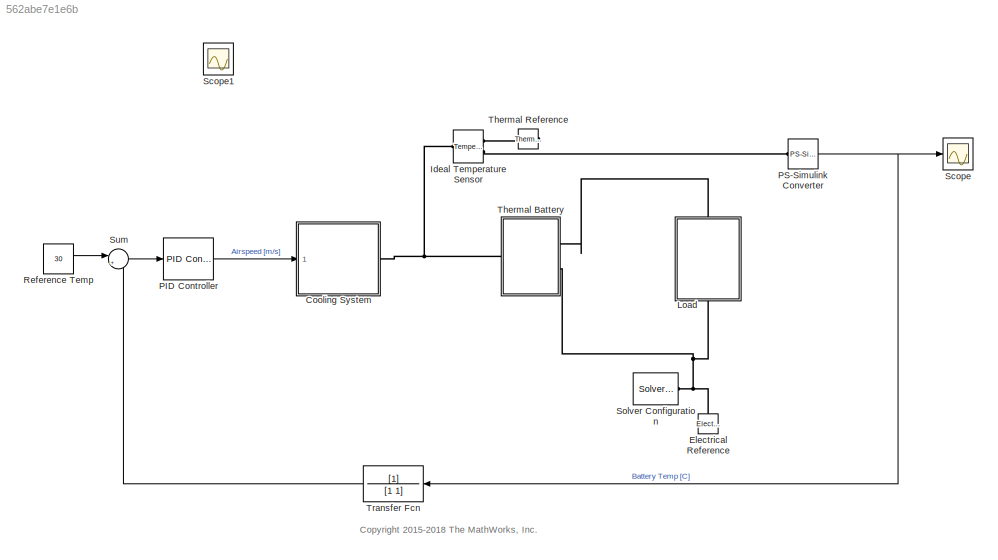
MODEL slx_562abe7e1e6b
KIND model
CONFIG AbsTol = 1e-3
CONFIG EnableMultiTasking = on
CONFIG FixedStep = auto
CONFIG MaxStep = auto
CONFIG MinStep = auto
CONFIG PreLoadFcn = % Cooler lookup table data\nload coolerData;
CONFIG RelTol = 1e-3
CONFIG SampleTimeConstraint = Unconstrained
CONFIG Solver = ode23t
CONFIG SolverName = ode23t
CONFIG StartTime = 0.0
CONFIG StopTime = 1000
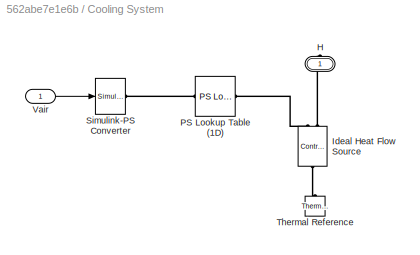
BLOCK [SubSystem] Cooling System
  Ports = [1, 0, 0, 0, 0, 0, 1]
  RequestExecContextInheritance = off
  Variant = off
BLOCK [PMIOPort] Cooling System/H
  Port = 1
  Side = Right
BLOCK [Reference] Cooling System/Ideal Heat Flow Source  REF=fl_lib/Thermal/Thermal Sources/Controlled Heat Flow
Rate Source
  Ports = [0, 0, 0, 0, 0, 1, 2]
  SourceBlock = fl_lib/Thermal/Thermal Sources/Controlled Heat Flow\nRate Source
  SourceProductBaseCode = SS
  SourceProductName = Simscape
  SourceType = Controlled Heat Flow\nRate Source
BLOCK [Reference] Cooling System/PS Lookup Table (1D)  REF=fl_lib/Physical Signals/Lookup Tables/PS Lookup Table (1D)
  AttributesFormatString = Cooling Fan
  Ports = [0, 0, 0, 0, 0, 1, 1]
  SourceBlock = fl_lib/Physical Signals/Lookup Tables/PS Lookup Table (1D)
  SourceProductBaseCode = SS
  SourceProductName = Simscape
  SourceType = PS Lookup Table (1D)
BLOCK [Reference] Cooling System/Simulink-PS Converter  REF=nesl_utility/Simulink-PS
Converter
  Ports = [1, 0, 0, 0, 0, 0, 1]
  SourceBlock = nesl_utility/Simulink-PS\nConverter
  SourceProductBaseCode = SS
  SourceProductName = Simscape
  SourceType = Simulink-PS\nConverter
BLOCK [Reference] Cooling System/Thermal Reference  REF=fl_lib/Thermal/Thermal Elements/Thermal Reference
  Ports = [0, 0, 0, 0, 0, 1]
  SourceBlock = fl_lib/Thermal/Thermal Elements/Thermal Reference
  SourceProductBaseCode = SS
  SourceProductName = Simscape
  SourceType = Thermal Reference
BLOCK [Inport] Cooling System/Vair
  IconDisplay = Port number
BLOCK [Reference] Electrical Reference  REF=fl_lib/Electrical/Electrical Elements/Electrical Reference
  Ports = [0, 0, 0, 0, 0, 1]
  SourceBlock = fl_lib/Electrical/Electrical Elements/Electrical Reference
  SourceProductBaseCode = SS
  SourceProductName = Simscape
  SourceType = Electrical Reference
BLOCK [Reference] Ideal Temperature Sensor  REF=fl_lib/Thermal/Thermal Sensors/Temperature Sensor
  Ports = [0, 0, 0, 0, 0, 1, 2]
  SourceBlock = fl_lib/Thermal/Thermal Sensors/Temperature Sensor
  SourceProductBaseCode = SS
  SourceProductName = Simscape
  SourceType = Temperature Sensor
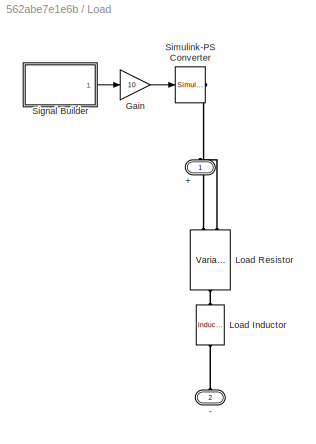
BLOCK [SubSystem] Load
  Ports = [0, 0, 0, 0, 0, 1, 1]
  RequestExecContextInheritance = off
  Variant = off
BLOCK [PMIOPort] Load/+
  Port = 1
  Side = Right
BLOCK [PMIOPort] Load/-
  Port = 2
  Side = Left
BLOCK [Gain] Load/Gain
  Gain = 10
  OutDataTypeStr = Inherit: Inherit via internal rule
  ParamDataTypeStr = Inherit: Inherit via internal rule
  SaturateOnIntegerOverflow = off
BLOCK [Reference] Load/Load Inductor  REF=fl_lib/Electrical/Electrical Elements/Inductor
  Ports = [0, 0, 0, 0, 0, 1, 1]
  SourceBlock = fl_lib/Electrical/Electrical Elements/Inductor
  SourceProductBaseCode = SS
  SourceProductName = Simscape
  SourceType = Inductor
BLOCK [Reference] Load/Load Resistor  REF=fl_lib/Electrical/Electrical Elements/Variable Resistor
  Ports = [0, 0, 0, 0, 0, 2, 1]
  SourceBlock = fl_lib/Electrical/Electrical Elements/Variable Resistor
  SourceProductBaseCode = SS
  SourceProductName = Simscape
  SourceType = Variable Resistor
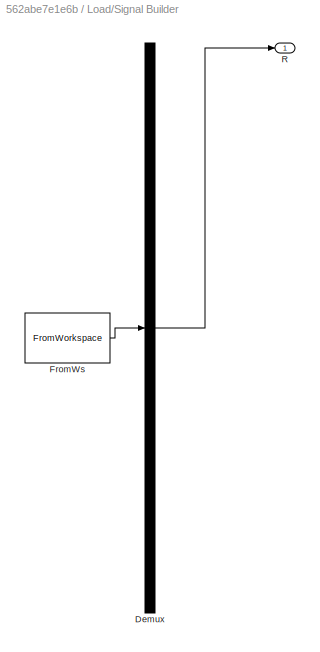
BLOCK [SubSystem] Load/Signal Builder
  ClipboardFcn = sigbuilder_block('clipboard');
  CloseFcn = sigbuilder_block('close');
  ContinueFcn = sigbuilder_block('continue');
  CopyFcn = sigbuilder_block('copy');
  DeleteFcn = sigbuilder_block('delete');
  LoadFcn = sigbuilder_block('load');
  MaskHideContents = on
  ModelCloseFcn = sigbuilder_block('modelClose');
  NameChangeFcn = sigbuilder_block('namechange');
  OpenFcn = sigbuilder_block('open',[437.6 199.2 550.4 400 ]);
  PauseFcn = sigbuilder_block('pause');
  Ports = [0, 1]
  PreSaveFcn = sigbuilder_block('preSave');
  RequestExecContextInheritance = off
  StartFcn = sigbuilder_block('start');
  StopFcn = sigbuilder_block('stop');
  Tag = STV Subsys
  Variant = off
BLOCK [Demux] Load/Signal Builder/Demux
  Outputs = 1
  Ports = [1, 1]
  Tag = STV Demux
BLOCK [FromWorkspace] Load/Signal Builder/FromWs
  SampleTime = 0
  Tag = STV FromWs
  VariableName = tuvar
  ZeroCross = on
BLOCK [Outport] Load/Signal Builder/R
  IconDisplay = Port number
  Tag = STV Outport
BLOCK [Reference] Load/Simulink-PS Converter  REF=nesl_utility/Simulink-PS
Converter
  Ports = [1, 0, 0, 0, 0, 0, 1]
  SourceBlock = nesl_utility/Simulink-PS\nConverter
  SourceProductBaseCode = SS
  SourceProductName = Simscape
  SourceType = Simulink-PS\nConverter
BLOCK [Reference] PID Controller  REF=simulink/Continuous/PID Controller
  Ports = [1, 1]
  SourceBlock = simulink/Continuous/PID Controller
  SourceProductBaseCode = SL
  SourceProductName = Simulink
  SourceType = PID 1dof
BLOCK [Reference] PS-Simulink Converter  REF=nesl_utility/PS-Simulink
Converter
  Ports = [0, 1, 0, 0, 0, 1]
  SourceBlock = nesl_utility/PS-Simulink\nConverter
  SourceProductBaseCode = SS
  SourceProductName = Simscape
  SourceType = PS-Simulink\nConverter
BLOCK [Constant] Reference Temp
  Value = 30
BLOCK [Scope] Scope
  NumInputPorts = 1
  Ports = [1]
  ScopeSpecificationString = C++SS(StrPVP('Location','[1071, 247, 1500, 624]'),StrPVP('Open','off'),MxPVP('AxesTitles',53,'struct(''axes1'',''%<SignalLabel>'')'),MxPVP('ScopeGraphics',56,'struct(''FigureColor'',''[0.5 0.5 0.5]'',''AxesColor'',''[0 0 0]'',''AxesTickColor'',''[1 1 1]'',''LineColors'',''[1 1 0;1 0 1;0 1 1;1 0 0;0 1 0;0 0 1]'',''LineStyles'',''-|-|-|-|-|-'',''LineWidths'',''[0.5 0.5 0.5 0.5 0.5 0.5]'',''MarkerSty...<+238ch>
BLOCK [Scope] Scope1
  IOType = viewer
  NumInputPorts = 1
  Ports = []
  ScopeSpecificationString = C++SS(StrPVP('Location','[376, 294, 700, 533]'),StrPVP('Open','off'),MxPVP('AxesTitles',53,'struct(''axes1'',''%<SignalLabel>'')'),MxPVP('ScopeGraphics',56,'struct(''FigureColor'',''[0.5 0.5 0.5]'',''AxesColor'',''[0 0 0]'',''AxesTickColor'',''[1 1 1]'',''LineColors'',''[1 1 0;1 0 1;0 1 1;1 0 0;0 1 0;0 0 1]'',''LineStyles'',''-|-|-|-|-|-'',''LineWidths'',''[0.5 0.5 0.5 0.5 0.5 0.5]'',''MarkerStyle...<+248ch>
BLOCK [Reference] Solver Configuration  REF=nesl_utility/Solver
Configuration
  Ports = [0, 0, 0, 0, 0, 0, 1]
  SourceBlock = nesl_utility/Solver\nConfiguration
  SourceProductBaseCode = SS
  SourceProductName = Simscape
  SourceType = Solver\nConfiguration
BLOCK [Sum] Sum
  IconShape = round
  InputSameDT = off
  Inputs = |+-
  OutDataTypeStr = Inherit: Inherit via internal rule
  Ports = [2, 1]
  SaturateOnIntegerOverflow = off
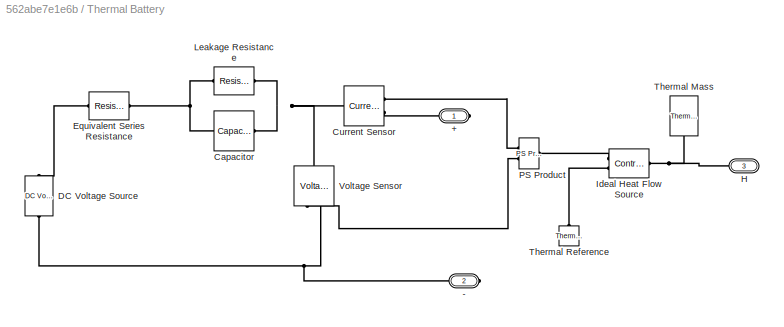
BLOCK [SubSystem] Thermal Battery
  Ports = [0, 0, 0, 0, 0, 1, 2]
  RequestExecContextInheritance = off
  Variant = off
BLOCK [PMIOPort] Thermal Battery/+
  Port = 1
  Side = Right
BLOCK [PMIOPort] Thermal Battery/-
  Port = 2
  Side = Right
BLOCK [Reference] Thermal Battery/Capacitor  REF=fl_lib/Electrical/Electrical Elements/Capacitor
  Ports = [0, 0, 0, 0, 0, 1, 1]
  SourceBlock = fl_lib/Electrical/Electrical Elements/Capacitor
  SourceProductBaseCode = SS
  SourceProductName = Simscape
  SourceType = Capacitor
BLOCK [Reference] Thermal Battery/Current Sensor  REF=fl_lib/Electrical/Electrical Sensors/Current Sensor
  Ports = [0, 0, 0, 0, 0, 1, 2]
  SourceBlock = fl_lib/Electrical/Electrical Sensors/Current Sensor
  SourceProductBaseCode = SS
  SourceProductName = Simscape
  SourceType = Current Sensor
BLOCK [Reference] Thermal Battery/DC Voltage Source  REF=fl_lib/Electrical/Electrical Sources/DC Voltage Source
  Ports = [0, 0, 0, 0, 0, 1, 1]
  SourceBlock = fl_lib/Electrical/Electrical Sources/DC Voltage Source
  SourceProductBaseCode = SS
  SourceProductName = Simscape
  SourceType = DC Voltage Source
BLOCK [Reference] Thermal Battery/Equivalent Series Resistance  REF=fl_lib/Electrical/Electrical Elements/Resistor
  Ports = [0, 0, 0, 0, 0, 1, 1]
  SourceBlock = fl_lib/Electrical/Electrical Elements/Resistor
  SourceProductBaseCode = SS
  SourceProductName = Simscape
  SourceType = Resistor
BLOCK [PMIOPort] Thermal Battery/H
  Port = 3
  Side = Left
BLOCK [Reference] Thermal Battery/Ideal Heat Flow Source  REF=fl_lib/Thermal/Thermal Sources/Controlled Heat Flow
Rate Source
  Ports = [0, 0, 0, 0, 0, 1, 2]
  SourceBlock = fl_lib/Thermal/Thermal Sources/Controlled Heat Flow\nRate Source
  SourceProductBaseCode = SS
  SourceProductName = Simscape
  SourceType = Controlled Heat Flow\nRate Source
BLOCK [Reference] Thermal Battery/Leakage Resistance  REF=fl_lib/Electrical/Electrical Elements/Resistor
  Ports = [0, 0, 0, 0, 0, 1, 1]
  SourceBlock = fl_lib/Electrical/Electrical Elements/Resistor
  SourceProductBaseCode = SS
  SourceProductName = Simscape
  SourceType = Resistor
BLOCK [Reference] Thermal Battery/PS Product  REF=fl_lib/Physical Signals/Functions/PS Product
  Ports = [0, 0, 0, 0, 0, 2, 1]
  SourceBlock = fl_lib/Physical Signals/Functions/PS Product
  SourceProductBaseCode = SS
  SourceProductName = Simscape
  SourceType = PS Product
BLOCK [Reference] Thermal Battery/Thermal Mass  REF=fl_lib/Thermal/Thermal Elements/Thermal Mass
  Ports = [0, 0, 0, 0, 0, 1]
  SourceBlock = fl_lib/Thermal/Thermal Elements/Thermal Mass
  SourceProductBaseCode = SS
  SourceProductName = Simscape
  SourceType = Thermal Mass
BLOCK [Reference] Thermal Battery/Thermal Reference  REF=fl_lib/Thermal/Thermal Elements/Thermal Reference
  Ports = [0, 0, 0, 0, 0, 1]
  SourceBlock = fl_lib/Thermal/Thermal Elements/Thermal Reference
  SourceProductBaseCode = SS
  SourceProductName = Simscape
  SourceType = Thermal Reference
BLOCK [Reference] Thermal Battery/Voltage Sensor  REF=fl_lib/Electrical/Electrical Sensors/Voltage Sensor
  Ports = [0, 0, 0, 0, 0, 1, 2]
  SourceBlock = fl_lib/Electrical/Electrical Sensors/Voltage Sensor
  SourceProductBaseCode = SS
  SourceProductName = Simscape
  SourceType = Voltage Sensor
BLOCK [Reference] Thermal Reference  REF=fl_lib/Thermal/Thermal Elements/Thermal Reference
  Ports = [0, 0, 0, 0, 0, 1]
  SourceBlock = fl_lib/Thermal/Thermal Elements/Thermal Reference
  SourceProductBaseCode = SS
  SourceProductName = Simscape
  SourceType = Thermal Reference
BLOCK [TransferFcn] Transfer Fcn
  Denominator = [1 1]
ANNOTATION (root): <copyright redacted>
LINE Cooling System/Vair:1 -> Cooling System/Simulink-PS Converter:1
LINE Load/Gain:1 -> Load/Simulink-PS Converter:1
LINE Load/Signal Builder:1 -> Load/Gain:1
LINE PID Controller:1 -> Cooling System:1
NET PS-Simulink Converter:1 -> Scope:1, Transfer Fcn:1
LINE Reference Temp:1 -> Sum:1
LINE Sum:1 -> PID Controller:1
LINE Transfer Fcn:1 -> Sum:2
PLINE Cooling System/H:RConn1 -- Cooling System/Ideal Heat Flow Source:RConn2
PLINE Cooling System/Ideal Heat Flow Source:LConn1 -- Cooling System/Thermal Reference:LConn1
PLINE Cooling System/Ideal Heat Flow Source:RConn1 -- Cooling System/PS Lookup Table (1D):RConn1
PLINE Cooling System/PS Lookup Table (1D):LConn1 -- Cooling System/Simulink-PS Converter:RConn1
PNET net1: Cooling System:RConn1 -- Ideal Temperature Sensor:LConn1 -- Thermal Battery:LConn1
PNET net2: Electrical Reference:LConn1 -- Load:LConn1 -- Solver Configuration:RConn1 -- Thermal Battery:RConn2
PLINE Ideal Temperature Sensor:RConn1 -- Thermal Reference:LConn1
PLINE Ideal Temperature Sensor:RConn2 -- PS-Simulink Converter:LConn1
PLINE Load/+:RConn1 -- Load/Load Resistor:LConn2
PLINE Load/-:RConn1 -- Load/Load Inductor:RConn1
PLINE Load/Load Inductor:LConn1 -- Load/Load Resistor:RConn1
PLINE Load/Load Resistor:LConn1 -- Load/Simulink-PS Converter:RConn1
PLINE Load:RConn1 -- Thermal Battery:RConn1
PLINE Thermal Battery/+:RConn1 -- Thermal Battery/Current Sensor:RConn2
PNET net3: Thermal Battery/-:RConn1 -- Thermal Battery/DC Voltage Source:RConn1 -- Thermal Battery/Voltage Sensor:RConn2
PNET net4: Thermal Battery/Capacitor:LConn1 -- Thermal Battery/Equivalent Series Resistance:RConn1 -- Thermal Battery/Leakage Resistance:LConn1
PNET net5: Thermal Battery/Capacitor:RConn1 -- Thermal Battery/Current Sensor:LConn1 -- Thermal Battery/Leakage Resistance:RConn1 -- Thermal Battery/Voltage Sensor:LConn1
PLINE Thermal Battery/Current Sensor:RConn1 -- Thermal Battery/PS Product:LConn1
PLINE Thermal Battery/DC Voltage Source:LConn1 -- Thermal Battery/Equivalent Series Resistance:LConn1
PNET net6: Thermal Battery/H:RConn1 -- Thermal Battery/Ideal Heat Flow Source:LConn1 -- Thermal Battery/Thermal Mass:LConn1
PLINE Thermal Battery/Ideal Heat Flow Source:RConn1 -- Thermal Battery/PS Product:RConn1
PLINE Thermal Battery/Ideal Heat Flow Source:RConn2 -- Thermal Battery/Thermal Reference:LConn1
PLINE Thermal Battery/PS Product:LConn2 -- Thermal Battery/Voltage Sensor:RConn1
note: NET lines group one-source signal fan-out (src -> all destinations, sorted); 1:1 wires keep LINE; PNET lines group multi-terminal physical nets as a canonical sorted terminal list (undirected conserving connections); 2-terminal nets keep the pairwise PLINE form
